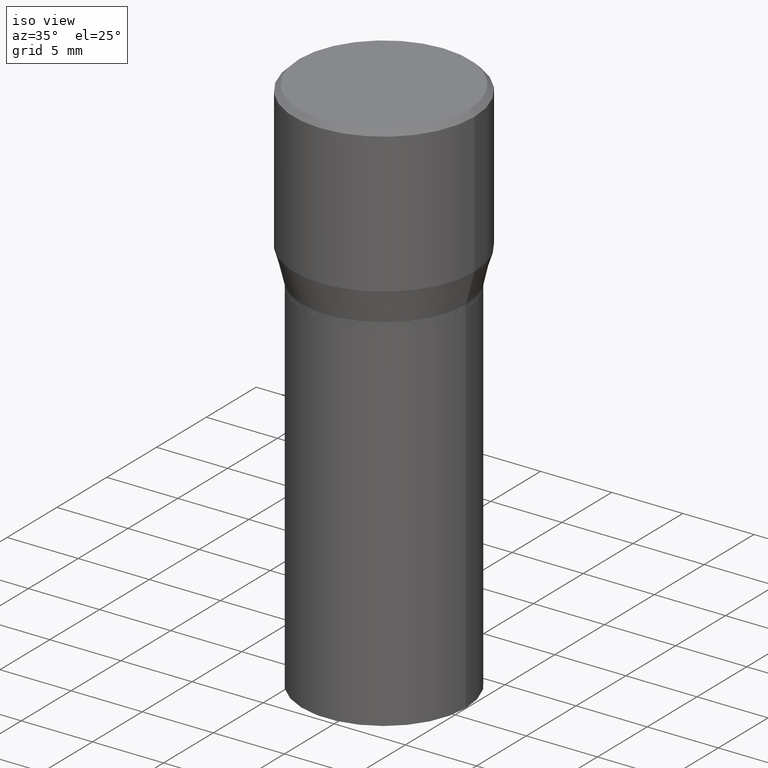
[diagram: clean part render]
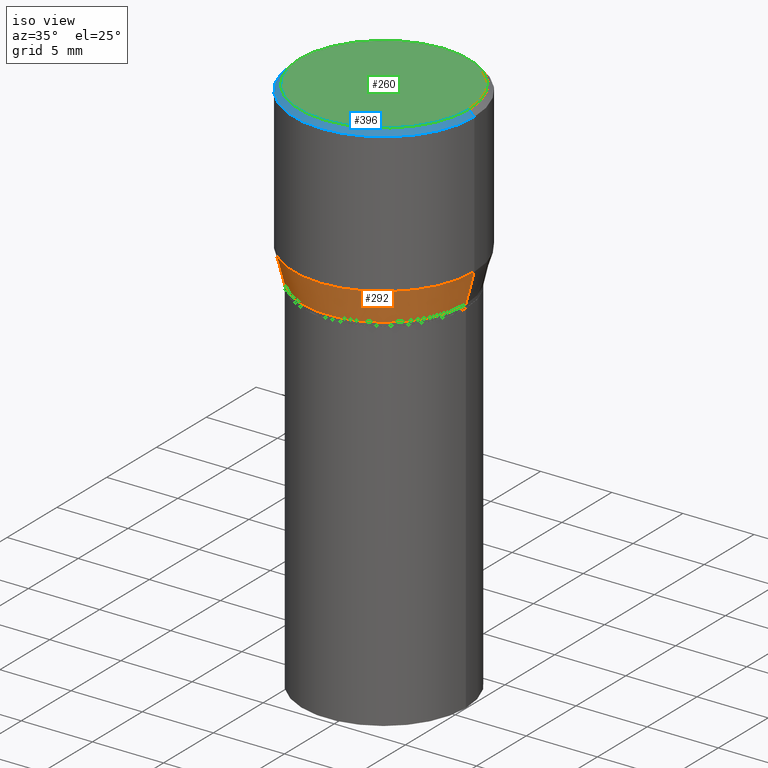
[diagram: same view with three faces highlighted in distinct colors, each labeled with its STEP entity id]
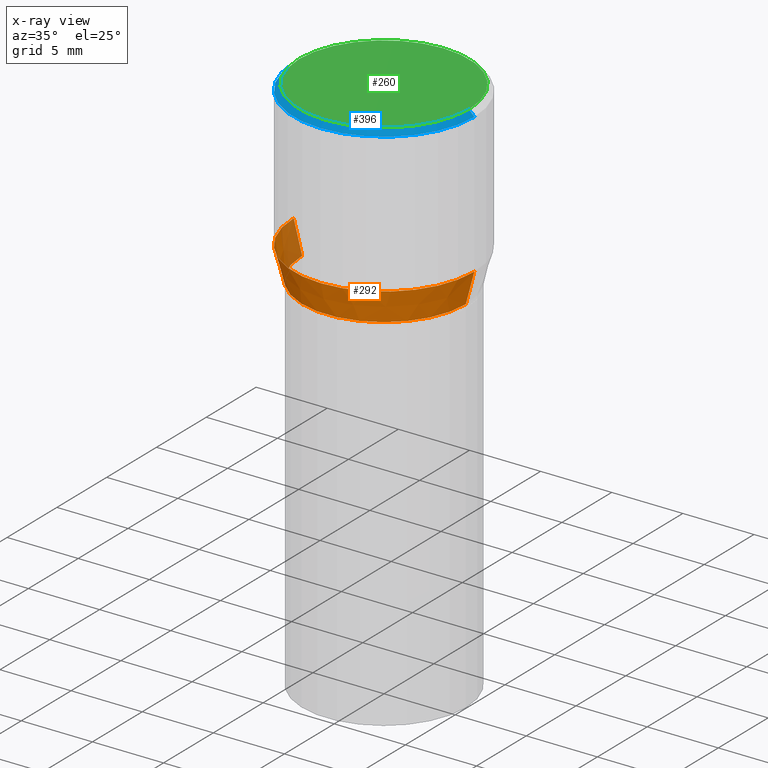
[diagram: x-ray of the same camera — body ghosted, the three highlighted faces saturated]
A machine part, iso view with three faces highlighted in distinct colors.
The next image is the same camera in x-ray (body ghosted, the three faces saturated) — at least one of them is partly hidden behind the body in this view.
Their STEP definitions:

[orange] entity #292 — the highlighted conical surface has half-angle 15 deg.
#25 = CARTESIAN_POINT ( 'NONE',  ( -0.2265499999999999736, 1.350011205208151600E-16, -0.4900000000000001021 ) ) ;
#33 = EDGE_LOOP ( 'NONE', ( #140, #453, #101, #168 ) ) ;
#41 = CARTESIAN_POINT ( 'NONE',  ( -0.2265499999999999736, -1.010912881686348269E-16, -0.4900000000000001021 ) ) ;
#54 = DIRECTION ( 'NONE',  ( 1.000000000000000000, -6.982962677686265922E-15, 0.000000000000000000 ) ) ;
#84 = AXIS2_PLACEMENT_3D ( 'NONE', #252, #277, #419 ) ;
#95 = DIRECTION ( 'NONE',  ( -2.445468806185136597E-29, 3.491481338843145583E-15, 1.000000000000000000 ) ) ;
#101 = ORIENTED_EDGE ( 'NONE', *, *, #373, .T. ) ;
#114 = AXIS2_PLACEMENT_3D ( 'NONE', #385, #95, #126 ) ;
#126 = DIRECTION ( 'NONE',  ( 1.000000000000000000, -6.982962677686265922E-15, 0.000000000000000000 ) ) ;
#131 = AXIS2_PLACEMENT_3D ( 'NONE', #454, #244, #54 ) ;
#132 = CARTESIAN_POINT ( 'NONE',  ( 0.2265499999999999736, -3.292816050662964671E-15, -0.4900000000000001021 ) ) ;
#136 = DIRECTION ( 'NONE',  ( 0.2588190451025214611, 1.565188264969621573E-15, 0.9659258262890682012 ) ) ;
#140 = ORIENTED_EDGE ( 'NONE', *, *, #176, .F. ) ;
#160 = CIRCLE ( 'NONE', #131, 0.2265499999999999736 ) ;
#168 = ORIENTED_EDGE ( 'NONE', *, *, #359, .F. ) ;
#176 = EDGE_CURVE ( 'NONE', #411, #232, #377, .T. ) ;
#210 = VERTEX_POINT ( 'NONE', #342 ) ;
#220 = VERTEX_POINT ( 'NONE', #268 ) ;
#232 = VERTEX_POINT ( 'NONE', #408 ) ;
#240 = CONICAL_SURFACE ( 'NONE', #114, 0.2265499999999999736, 0.2617993877991501295 ) ;
#244 = DIRECTION ( 'NONE',  ( -2.445468806185136597E-29, 3.491481338843145583E-15, 1.000000000000000000 ) ) ;
#252 = CARTESIAN_POINT ( 'NONE',  ( 9.842606206466859638E-30, -1.405263310189985589E-15, -0.4024834085625100810 ) ) ;
#268 = CARTESIAN_POINT ( 'NONE',  ( 0.2265499999999999736, -3.292816050662964671E-15, -0.4900000000000001021 ) ) ;
#277 = DIRECTION ( 'NONE',  ( -2.445468806185136597E-29, 3.491481338843145583E-15, 1.000000000000000000 ) ) ;
#281 = FACE_OUTER_BOUND ( 'NONE', #33, .T. ) ;
#292 = ADVANCED_FACE ( 'NONE', ( #281 ), #240, .T. ) ;
#296 = CIRCLE ( 'NONE', #84, 0.2500000000000000000 ) ;
#312 = LINE ( 'NONE', #132, #376 ) ;
#342 = CARTESIAN_POINT ( 'NONE',  ( 0.2500000000000000000, -3.151003979611552069E-15, -0.4024834085625100810 ) ) ;
#347 = DIRECTION ( 'NONE',  ( -0.2588190451025214611, 5.211531920934551042E-15, 0.9659258262890682012 ) ) ;
#353 = VECTOR ( 'NONE', #347, 39.37007874015747433 ) ;
#359 = EDGE_CURVE ( 'NONE', #232, #210, #296, .T. ) ;
#373 = EDGE_CURVE ( 'NONE', #220, #210, #312, .T. ) ;
#376 = VECTOR ( 'NONE', #136, 39.37007874015747433 ) ;
#377 = LINE ( 'NONE', #41, #353 ) ;
#385 = CARTESIAN_POINT ( 'NONE',  ( 1.198279715030717173E-29, -1.710825856033141537E-15, -0.4900000000000001021 ) ) ;
#408 = CARTESIAN_POINT ( 'NONE',  ( -0.2500000000000000000, 3.710935292102651716E-16, -0.4024834085625100810 ) ) ;
#411 = VERTEX_POINT ( 'NONE', #25 ) ;
#419 = DIRECTION ( 'NONE',  ( 1.000000000000000000, -6.982962677686265922E-15, 0.000000000000000000 ) ) ;
#453 = ORIENTED_EDGE ( 'NONE', *, *, #458, .T. ) ;
#454 = CARTESIAN_POINT ( 'NONE',  ( 1.198279715030717173E-29, -1.710825856033141537E-15, -0.4900000000000001021 ) ) ;
#458 = EDGE_CURVE ( 'NONE', #411, #220, #160, .T. ) ;

[blue] entity #396 — the highlighted conical surface has half-angle 45 deg.
#5 = EDGE_CURVE ( 'NONE', #112, #214, #177, .T. ) ;
#8 = CARTESIAN_POINT ( 'NONE',  ( 3.668203209277705088E-31, -5.237222008264718399E-17, -0.01499999999999999944 ) ) ;
#14 = CARTESIAN_POINT ( 'NONE',  ( 0.2500000000000000000, -1.798112889504214151E-15, -0.01499999999999999944 ) ) ;
#19 = FACE_OUTER_BOUND ( 'NONE', #45, .T. ) ;
#45 = EDGE_LOOP ( 'NONE', ( #91, #163, #61, #181 ) ) ;
#59 = DIRECTION ( 'NONE',  ( 1.000000000000000000, -6.982962677686267499E-15, 4.878549297894958458E-29 ) ) ;
#61 = ORIENTED_EDGE ( 'NONE', *, *, #383, .T. ) ;
#87 = LINE ( 'NONE', #238, #98 ) ;
#88 = LINE ( 'NONE', #390, #282 ) ;
#91 = ORIENTED_EDGE ( 'NONE', *, *, #246, .F. ) ;
#98 = VECTOR ( 'NONE', #241, 39.37007874015748143 ) ;
#112 = VERTEX_POINT ( 'NONE', #119 ) ;
#119 = CARTESIAN_POINT ( 'NONE',  ( -0.2349999999999999867, 1.667182339297596256E-15, 1.568636843340762393E-16 ) ) ;
#120 = EDGE_CURVE ( 'NONE', #329, #200, #460, .T. ) ;
#123 = AXIS2_PLACEMENT_3D ( 'NONE', #8, #319, #133 ) ;
#133 = DIRECTION ( 'NONE',  ( 1.000000000000000000, -6.982962677686266711E-15, 0.000000000000000000 ) ) ;
#163 = ORIENTED_EDGE ( 'NONE', *, *, #5, .F. ) ;
#177 = CIRCLE ( 'NONE', #423, 0.2349999999999999867 ) ;
#181 = ORIENTED_EDGE ( 'NONE', *, *, #120, .T. ) ;
#200 = VERTEX_POINT ( 'NONE', #14 ) ;
#214 = VERTEX_POINT ( 'NONE', #449 ) ;
#238 = CARTESIAN_POINT ( 'NONE',  ( 0.2500000000000000000, -1.767496719525530167E-15, -0.01499999999999999944 ) ) ;
#241 = DIRECTION ( 'NONE',  ( 0.7071067811865441310, -7.319954787623245001E-15, -0.7071067811865509034 ) ) ;
#242 = DIRECTION ( 'NONE',  ( 2.445468806185136597E-29, -3.491481338843145583E-15, -1.000000000000000000 ) ) ;
#246 = EDGE_CURVE ( 'NONE', #214, #200, #87, .T. ) ;
#282 = VECTOR ( 'NONE', #284, 39.37007874015748143 ) ;
#284 = DIRECTION ( 'NONE',  ( -0.7071067811865441310, 2.468850131082221167E-15, -0.7071067811865509034 ) ) ;
#291 = DIRECTION ( 'NONE',  ( -2.445468806185136597E-29, 3.491481338843145583E-15, 1.000000000000000000 ) ) ;
#319 = DIRECTION ( 'NONE',  ( -2.445468806185136597E-29, 3.491481338843145583E-15, 1.000000000000000000 ) ) ;
#329 = VERTEX_POINT ( 'NONE', #461 ) ;
#383 = EDGE_CURVE ( 'NONE', #112, #329, #88, .T. ) ;
#386 = DIRECTION ( 'NONE',  ( -1.000000000000000000, 6.982962677686266711E-15, 0.000000000000000000 ) ) ;
#390 = CARTESIAN_POINT ( 'NONE',  ( -0.2500000000000000000, 1.693368449338919401E-15, -0.01499999999999999944 ) ) ;
#392 = CARTESIAN_POINT ( 'NONE',  ( -3.836052468622837406E-45, 5.476866265946494270E-31, 1.568636843340877764E-16 ) ) ;
#396 = ADVANCED_FACE ( 'NONE', ( #19 ), #445, .T. ) ;
#423 = AXIS2_PLACEMENT_3D ( 'NONE', #392, #291, #59 ) ;
#424 = AXIS2_PLACEMENT_3D ( 'NONE', #425, #242, #386 ) ;
#425 = CARTESIAN_POINT ( 'NONE',  ( 3.668203209277705088E-31, -5.237222008264718399E-17, -0.01499999999999999944 ) ) ;
#445 = CONICAL_SURFACE ( 'NONE', #424, 0.2500000000000000000, 0.7853981633974435050 ) ;
#449 = CARTESIAN_POINT ( 'NONE',  ( 0.2349999999999999867, -1.689856874500919833E-15, 1.568636843340994368E-16 ) ) ;
#460 = CIRCLE ( 'NONE', #123, 0.2500000000000000000 ) ;
#461 = CARTESIAN_POINT ( 'NONE',  ( -0.2500000000000000000, 1.047539074263934229E-15, -0.01499999999999999944 ) ) ;

[green] entity #260 — the highlighted planar face has unit normal (0, -0, -1).
#5 = EDGE_CURVE ( 'NONE', #112, #214, #177, .T. ) ;
#10 = AXIS2_PLACEMENT_3D ( 'NONE', #48, #300, #348 ) ;
#24 = DIRECTION ( 'NONE',  ( -2.445468806185136597E-29, 3.491481338843145583E-15, 1.000000000000000000 ) ) ;
#48 = CARTESIAN_POINT ( 'NONE',  ( 1.640996229256272519E-15, 0.2349999999999999867, -7.420662724610952803E-16 ) ) ;
#50 = CARTESIAN_POINT ( 'NONE',  ( -3.836052468622837406E-45, 5.476866265946494270E-31, 1.568636843340877764E-16 ) ) ;
#52 = CIRCLE ( 'NONE', #104, 0.2349999999999999867 ) ;
#59 = DIRECTION ( 'NONE',  ( 1.000000000000000000, -6.982962677686267499E-15, 4.878549297894958458E-29 ) ) ;
#102 = EDGE_LOOP ( 'NONE', ( #144, #122 ) ) ;
#104 = AXIS2_PLACEMENT_3D ( 'NONE', #50, #24, #128 ) ;
#112 = VERTEX_POINT ( 'NONE', #119 ) ;
#119 = CARTESIAN_POINT ( 'NONE',  ( -0.2349999999999999867, 1.667182339297596256E-15, 1.568636843340762393E-16 ) ) ;
#122 = ORIENTED_EDGE ( 'NONE', *, *, #327, .T. ) ;
#128 = DIRECTION ( 'NONE',  ( 1.000000000000000000, -6.982962677686267499E-15, 4.878549297894958458E-29 ) ) ;
#144 = ORIENTED_EDGE ( 'NONE', *, *, #5, .T. ) ;
#154 = PLANE ( 'NONE',  #10 ) ;
#177 = CIRCLE ( 'NONE', #423, 0.2349999999999999867 ) ;
#214 = VERTEX_POINT ( 'NONE', #449 ) ;
#260 = ADVANCED_FACE ( 'NONE', ( #381 ), #154, .F. ) ;
#291 = DIRECTION ( 'NONE',  ( -2.445468806185136597E-29, 3.491481338843145583E-15, 1.000000000000000000 ) ) ;
#300 = DIRECTION ( 'NONE',  ( 2.438088387897960049E-29, -3.491481338843145188E-15, -1.000000000000000000 ) ) ;
#327 = EDGE_CURVE ( 'NONE', #214, #112, #52, .T. ) ;
#348 = DIRECTION ( 'NONE',  ( -1.000000000000000000, 6.982962677686265922E-15, -4.876176775795935793E-29 ) ) ;
#381 = FACE_OUTER_BOUND ( 'NONE', #102, .T. ) ;
#392 = CARTESIAN_POINT ( 'NONE',  ( -3.836052468622837406E-45, 5.476866265946494270E-31, 1.568636843340877764E-16 ) ) ;
#423 = AXIS2_PLACEMENT_3D ( 'NONE', #392, #291, #59 ) ;
#449 = CARTESIAN_POINT ( 'NONE',  ( 0.2349999999999999867, -1.689856874500919833E-15, 1.568636843340994368E-16 ) ) ;